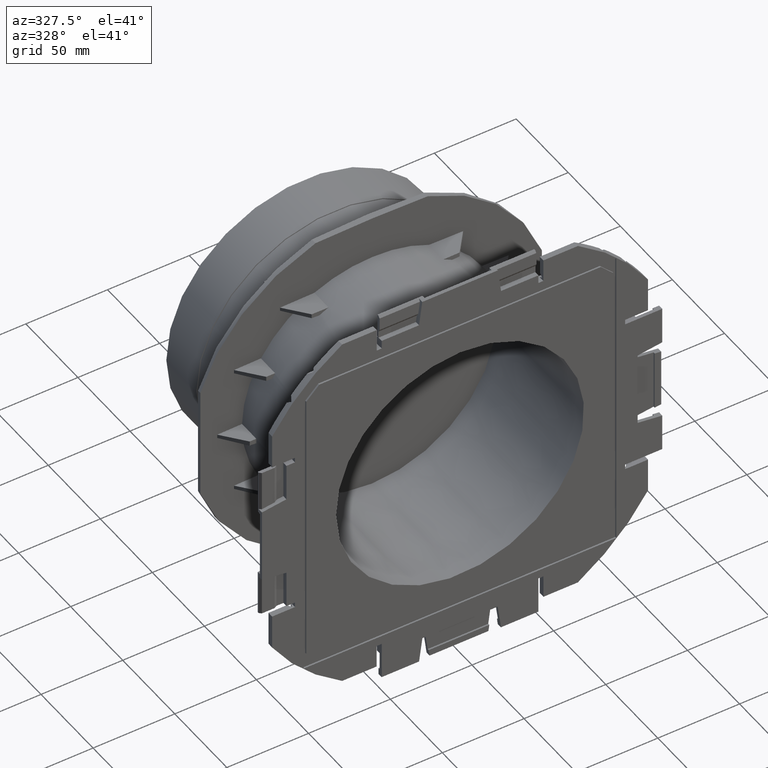
[diagram: clean part render]
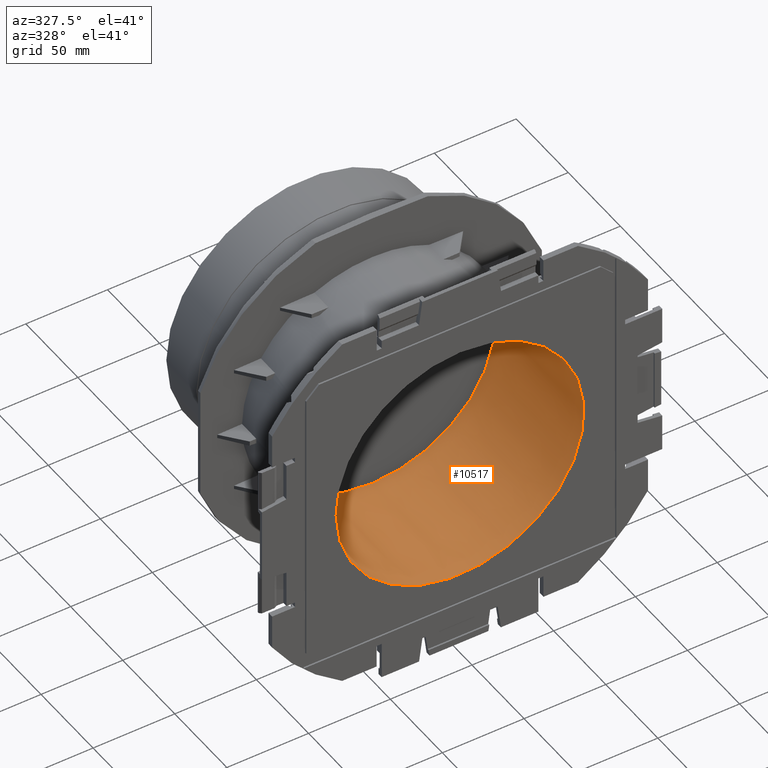
[diagram: same view with one face highlighted and labeled with its STEP entity id]
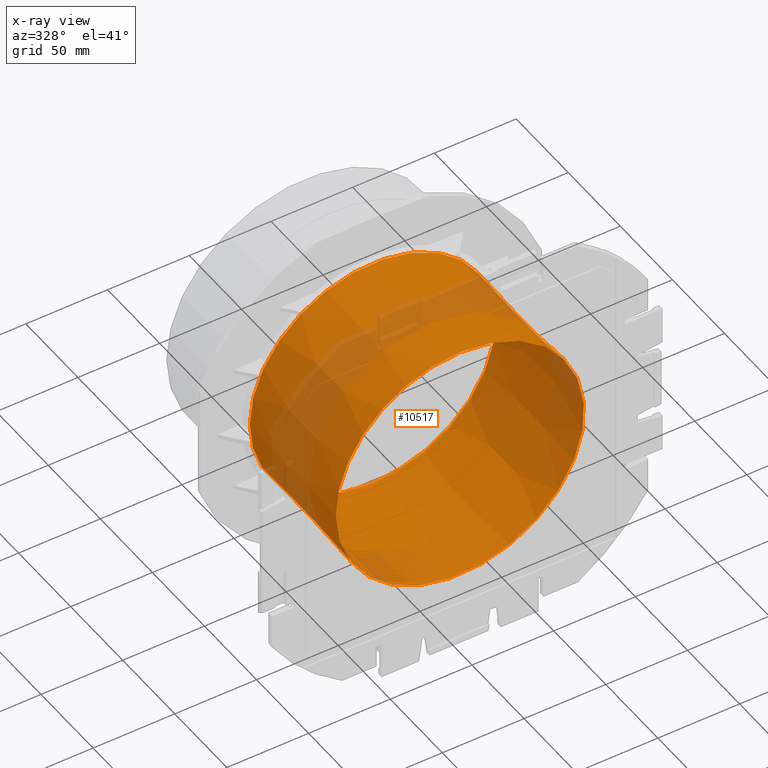
[diagram: x-ray of the same camera — body ghosted, the highlighted face saturated]
A machine part, auxiliary view. The second image highlights one B-rep face of the part: STEP entity #10517.
The next image is the same camera in x-ray: the body ghosted, the highlighted face saturated — about 17% of this face is hidden behind the body in this view.
In plain terms, the highlighted conical surface has half-angle 0.5 deg.
Its self-contained STEP definition (entity closure, byte-faithful):
#141=CONICAL_SURFACE('',#11295,75.15,0.00872664625997165);
#520=CIRCLE('',#10585,75.8830568944237);
#521=CIRCLE('',#10586,75.8830568944237);
#678=CIRCLE('',#11296,75.15);
#679=CIRCLE('',#11297,75.15);
#1193=FACE_OUTER_BOUND('',#1751,.T.);
#1751=EDGE_LOOP('',(#8996,#8997,#8998,#8999,#9000,#9001));
#2747=LINE('',#20150,#3731);
#3731=VECTOR('',#13726,75.15);
#3750=VERTEX_POINT('',#13808);
#3751=VERTEX_POINT('',#13809);
#4699=VERTEX_POINT('',#20147);
#4700=VERTEX_POINT('',#20148);
#4712=EDGE_CURVE('',#3750,#3751,#520,.F.);
#4713=EDGE_CURVE('',#3751,#3750,#521,.F.);
#6153=EDGE_CURVE('',#4699,#4700,#678,.T.);
#6154=EDGE_CURVE('',#4700,#3751,#2747,.T.);
#6155=EDGE_CURVE('',#4700,#4699,#679,.T.);
#8996=ORIENTED_EDGE('',*,*,#6153,.T.);
#8997=ORIENTED_EDGE('',*,*,#6154,.T.);
#8998=ORIENTED_EDGE('',*,*,#4712,.F.);
#8999=ORIENTED_EDGE('',*,*,#4713,.F.);
#9000=ORIENTED_EDGE('',*,*,#6154,.F.);
#9001=ORIENTED_EDGE('',*,*,#6155,.T.);
#10517=ADVANCED_FACE('',(#1193),#141,.F.);
#10585=AXIS2_PLACEMENT_3D('',#13810,#11337,#11338);
#10586=AXIS2_PLACEMENT_3D('',#13811,#11339,#11340);
#11295=AXIS2_PLACEMENT_3D('',#20146,#13722,#13723);
#11296=AXIS2_PLACEMENT_3D('',#20149,#13724,#13725);
#11297=AXIS2_PLACEMENT_3D('',#20151,#13727,#13728);
#11337=DIRECTION('center_axis',(0.,-1.,0.));
#11338=DIRECTION('ref_axis',(1.,0.,0.));
#11339=DIRECTION('center_axis',(0.,-1.,0.));
#11340=DIRECTION('ref_axis',(1.,0.,0.));
#13722=DIRECTION('center_axis',(0.,-1.,0.));
#13723=DIRECTION('ref_axis',(1.,0.,0.));
#13724=DIRECTION('center_axis',(0.,1.,0.));
#13725=DIRECTION('ref_axis',(1.,0.,0.));
#13726=DIRECTION('',(-0.00872653549837393,-0.999961923064171,-1.06869237657294E-18));
#13727=DIRECTION('center_axis',(0.,1.,0.));
#13728=DIRECTION('ref_axis',(1.,0.,0.));
#13808=CARTESIAN_POINT('',(0.,-88.5,75.8830568944237));
#13809=CARTESIAN_POINT('',(-75.8830568944237,-88.5,-9.29299427352725E-15));
#13810=CARTESIAN_POINT('Origin',(0.,-88.5,0.));
#13811=CARTESIAN_POINT('Origin',(0.,-88.5,0.));
#20146=CARTESIAN_POINT('Origin',(0.,-4.5,0.));
#20147=CARTESIAN_POINT('',(32.1591645665036,-4.5,-67.9213562466514));
#20148=CARTESIAN_POINT('',(-75.15,-4.5,-9.20322069559236E-15));
#20149=CARTESIAN_POINT('Origin',(0.,-4.5,0.));
#20150=CARTESIAN_POINT('',(-75.15,-4.5,-9.20322069559236E-15));
#20151=CARTESIAN_POINT('Origin',(0.,-4.5,0.));